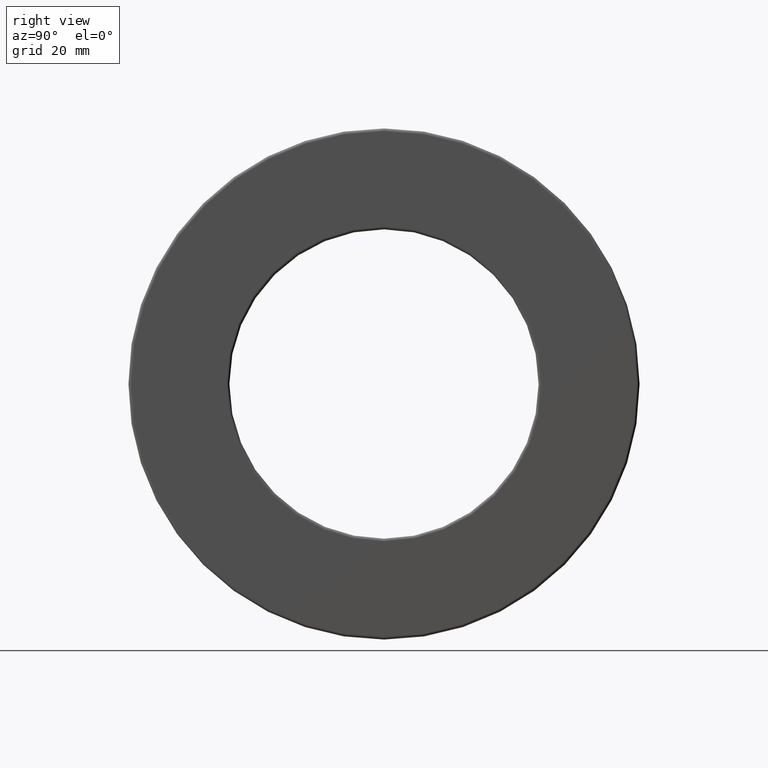
[diagram: clean part render]
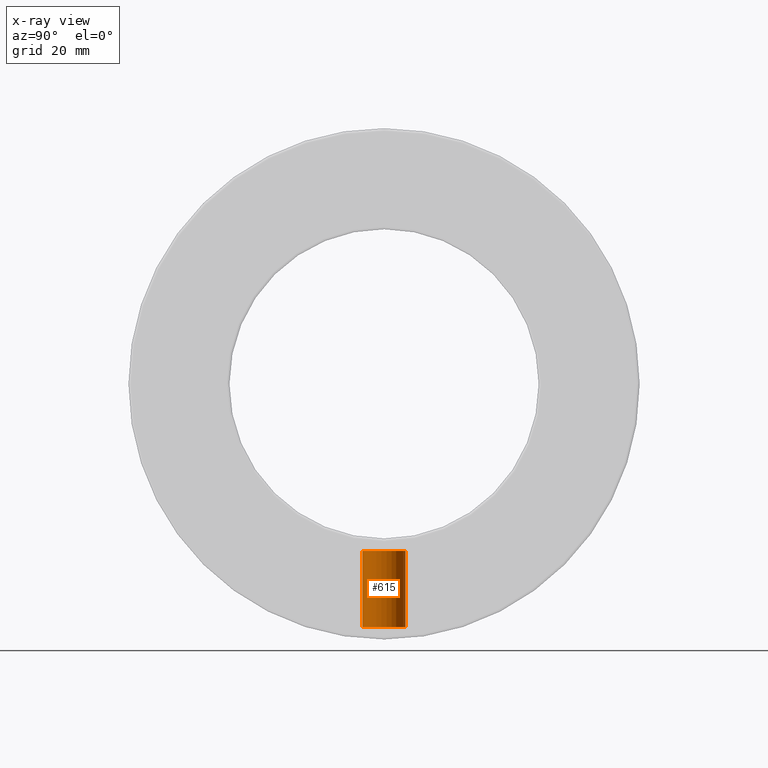
[diagram: x-ray — body ghosted, one internal face saturated and labeled with its STEP entity id]
A machine part, right view, then the same camera in x-ray: the body is ghosted and one INTERNAL B-rep face — a face not visible from any outside direction — is saturated and labeled: STEP entity #615.
In plain terms, the highlighted cylindrical surface (bore or boss wall) has radius 3.9624 mm, axis along (0, -0, -1).
Its self-contained STEP definition (entity closure, byte-faithful):
#17 = EDGE_LOOP ( 'NONE', ( #253 ) ) ;
#25 = EDGE_CURVE ( 'NONE', #327, #327, #1199, .T. ) ;
#26 = CYLINDRICAL_SURFACE ( 'NONE', #260, 0.1559999999999999200 ) ;
#75 = DIRECTION ( 'NONE',  ( 0.0000000000000000000, -3.491481338843133400E-015, -1.000000000000000000 ) ) ;
#117 = DIRECTION ( 'NONE',  ( 0.0000000000000000000, -3.491481338843133400E-015, -1.000000000000000000 ) ) ;
#156 = EDGE_LOOP ( 'NONE', ( #906 ) ) ;
#212 = DIRECTION ( 'NONE',  ( 0.0000000000000000000, 1.000000000000000000, -3.502369222646494500E-015 ) ) ;
#253 = ORIENTED_EDGE ( 'NONE', *, *, #25, .F. ) ;
#260 = AXIS2_PLACEMENT_3D ( 'NONE', #1197, #75, #869 ) ;
#327 = VERTEX_POINT ( 'NONE', #1329 ) ;
#336 = FACE_OUTER_BOUND ( 'NONE', #156, .T. ) ;
#425 = EDGE_CURVE ( 'NONE', #770, #770, #1152, .T. ) ;
#435 = CARTESIAN_POINT ( 'NONE',  ( 0.0000000000000000000, -6.177739793915569600E-015, -1.769374999999999900 ) ) ;
#615 = ADVANCED_FACE ( 'NONE', ( #336, #1261 ), #26, .T. ) ;
#716 = DIRECTION ( 'NONE',  ( 0.0000000000000000000, 1.000000000000000000, -3.502369222646491400E-015 ) ) ;
#723 = DIRECTION ( 'NONE',  ( 0.0000000000000000000, -3.491481338843133400E-015, -1.000000000000000000 ) ) ;
#770 = VERTEX_POINT ( 'NONE', #1110 ) ;
#869 = DIRECTION ( 'NONE',  ( 0.0000000000000000000, 1.000000000000000000, -3.491481338843133400E-015 ) ) ;
#906 = ORIENTED_EDGE ( 'NONE', *, *, #425, .T. ) ;
#932 = AXIS2_PLACEMENT_3D ( 'NONE', #1400, #723, #716 ) ;
#1110 = CARTESIAN_POINT ( 'NONE',  ( 0.0000000000000000000, 0.1559999999999957500, -1.215000000000000700 ) ) ;
#1152 = CIRCLE ( 'NONE', #932, 0.1560000000000000000 ) ;
#1197 = CARTESIAN_POINT ( 'NONE',  ( 0.0000000000000000000, 0.0000000000000000000, 0.0000000000000000000 ) ) ;
#1199 = CIRCLE ( 'NONE', #1252, 0.1559999999999998600 ) ;
#1252 = AXIS2_PLACEMENT_3D ( 'NONE', #435, #117, #212 ) ;
#1261 = FACE_OUTER_BOUND ( 'NONE', #17, .T. ) ;
#1329 = CARTESIAN_POINT ( 'NONE',  ( 0.0000000000000000000, 0.1559999999999936700, -1.769375000000000600 ) ) ;
#1400 = CARTESIAN_POINT ( 'NONE',  ( 0.0000000000000000000, -4.242149826694407500E-015, -1.215000000000000100 ) ) ;